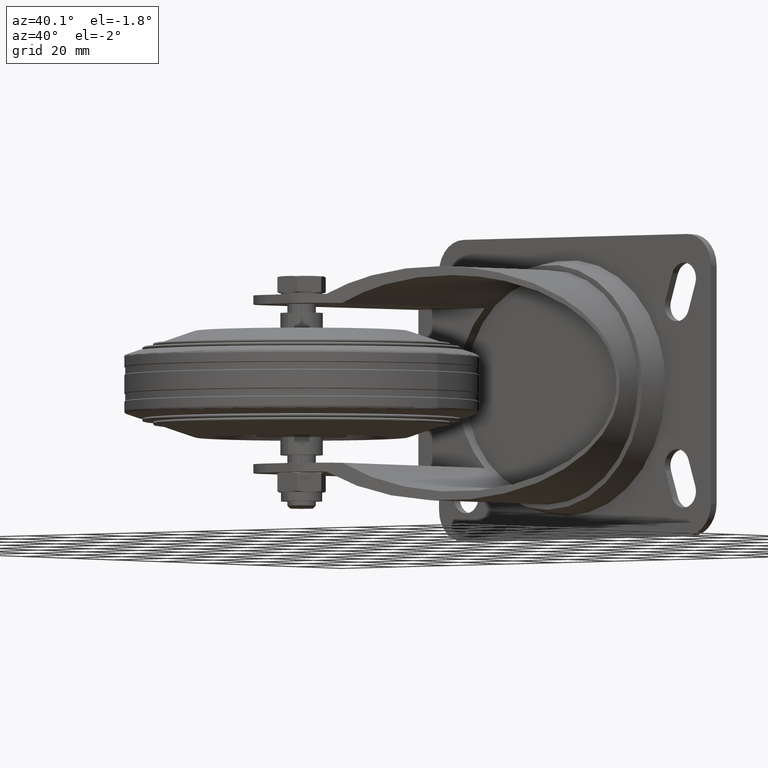
[diagram: clean part render]
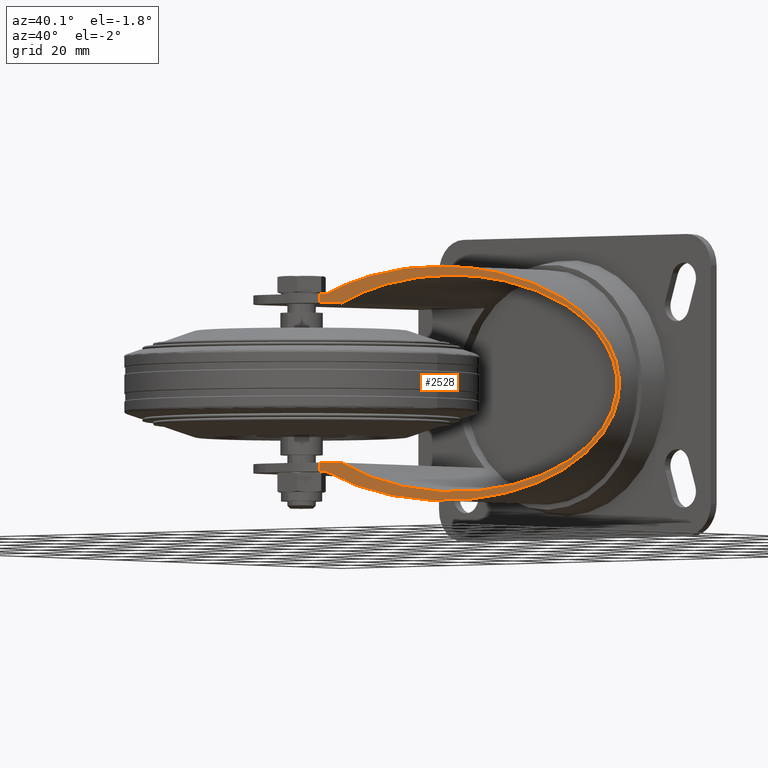
[diagram: same view with one face highlighted and labeled with its STEP entity id]
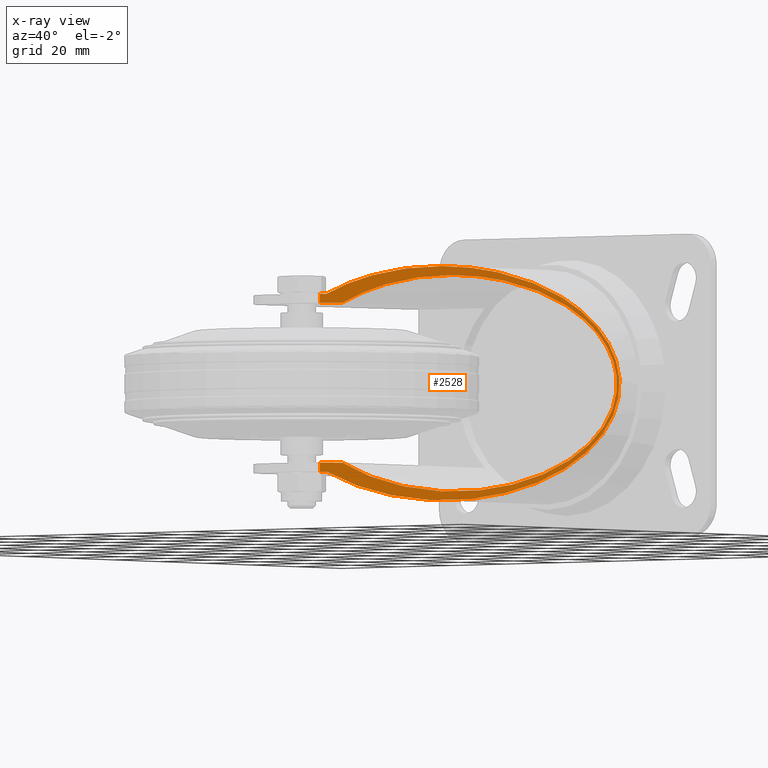
[diagram: x-ray of the same camera — body ghosted, the highlighted face saturated]
A machine part, auxiliary view. The second image highlights one B-rep face of the part: STEP entity #2528.
The next image is the same camera in x-ray: the body ghosted, the highlighted face saturated — about 0% of this face is hidden behind the body in this view.
In plain terms, the highlighted planar face has unit normal (0.7577, -0.6526, 0).
Its self-contained STEP definition (entity closure, byte-faithful):
#53=ELLIPSE('',#2855,46.7387825769155,30.5);
#54=ELLIPSE('',#2856,46.7387825769155,30.5);
#55=ELLIPSE('',#2857,50.5698303291217,33.);
#56=ELLIPSE('',#2858,50.5698303291217,33.);
#176=PLANE('',#2854);
#237=LINE('',#4278,#364);
#240=LINE('',#4290,#367);
#255=LINE('',#4329,#382);
#256=LINE('',#4334,#383);
#257=LINE('',#4336,#384);
#258=LINE('',#4341,#385);
#364=VECTOR('',#3315,1000.);
#367=VECTOR('',#3326,1000.);
#382=VECTOR('',#3363,1000.);
#383=VECTOR('',#3368,1000.);
#384=VECTOR('',#3369,1000.);
#385=VECTOR('',#3374,1000.);
#569=FACE_OUTER_BOUND('',#744,.T.);
#744=EDGE_LOOP('',(#1945,#1946,#1947,#1948,#1949,#1950,#1951,#1952,#1953,
#1954));
#1175=VERTEX_POINT('',#4274);
#1177=VERTEX_POINT('',#4277);
#1180=VERTEX_POINT('',#4284);
#1182=VERTEX_POINT('',#4288);
#1195=VERTEX_POINT('',#4328);
#1196=VERTEX_POINT('',#4330);
#1197=VERTEX_POINT('',#4332);
#1198=VERTEX_POINT('',#4335);
#1199=VERTEX_POINT('',#4337);
#1200=VERTEX_POINT('',#4339);
#1445=EDGE_CURVE('',#1177,#1175,#237,.T.);
#1451=EDGE_CURVE('',#1180,#1182,#240,.T.);
#1470=EDGE_CURVE('',#1175,#1195,#255,.T.);
#1471=EDGE_CURVE('',#1195,#1196,#53,.F.);
#1472=EDGE_CURVE('',#1196,#1197,#54,.F.);
#1473=EDGE_CURVE('',#1197,#1180,#256,.T.);
#1474=EDGE_CURVE('',#1182,#1198,#257,.T.);
#1475=EDGE_CURVE('',#1198,#1199,#55,.T.);
#1476=EDGE_CURVE('',#1199,#1200,#56,.T.);
#1477=EDGE_CURVE('',#1177,#1200,#258,.T.);
#1945=ORIENTED_EDGE('',*,*,#1445,.T.);
#1946=ORIENTED_EDGE('',*,*,#1470,.T.);
#1947=ORIENTED_EDGE('',*,*,#1471,.T.);
#1948=ORIENTED_EDGE('',*,*,#1472,.T.);
#1949=ORIENTED_EDGE('',*,*,#1473,.T.);
#1950=ORIENTED_EDGE('',*,*,#1451,.T.);
#1951=ORIENTED_EDGE('',*,*,#1474,.T.);
#1952=ORIENTED_EDGE('',*,*,#1475,.T.);
#1953=ORIENTED_EDGE('',*,*,#1476,.T.);
#1954=ORIENTED_EDGE('',*,*,#1477,.F.);
#2528=ADVANCED_FACE('',(#569),#176,.T.);
#2854=AXIS2_PLACEMENT_3D('',#4327,#3361,#3362);
#2855=AXIS2_PLACEMENT_3D('',#4331,#3364,#3365);
#2856=AXIS2_PLACEMENT_3D('',#4333,#3366,#3367);
#2857=AXIS2_PLACEMENT_3D('',#4338,#3370,#3371);
#2858=AXIS2_PLACEMENT_3D('',#4340,#3372,#3373);
#3315=DIRECTION('',(0.,0.,-1.));
#3326=DIRECTION('',(0.,0.,-1.));
#3361=DIRECTION('center_axis',(0.757734475862358,-0.652562996261355,0.));
#3362=DIRECTION('ref_axis',(0.652562996261355,0.757734475862358,0.));
#3363=DIRECTION('',(0.652562996261355,0.757734475862358,0.));
#3364=DIRECTION('center_axis',(0.757734475862358,-0.652562996261355,0.));
#3365=DIRECTION('ref_axis',(-0.652562996261355,-0.757734475862358,0.));
#3366=DIRECTION('center_axis',(0.757734475862358,-0.652562996261355,0.));
#3367=DIRECTION('ref_axis',(-0.652562996261355,-0.757734475862358,0.));
#3368=DIRECTION('',(-0.652562996261355,-0.757734475862358,0.));
#3369=DIRECTION('',(0.652562996261355,0.757734475862358,0.));
#3370=DIRECTION('center_axis',(0.757734475862358,-0.652562996261355,0.));
#3371=DIRECTION('ref_axis',(-0.652562996261355,-0.757734475862358,0.));
#3372=DIRECTION('center_axis',(0.757734475862358,-0.652562996261355,0.));
#3373=DIRECTION('ref_axis',(-0.652562996261355,-0.757734475862358,0.));
#3374=DIRECTION('',(0.652562996261355,0.757734475862358,0.));
#4274=CARTESIAN_POINT('',(12.2773447586236,-6.52562996261356,22.5));
#4277=CARTESIAN_POINT('',(12.2773447586236,-6.52562996261356,25.));
#4278=CARTESIAN_POINT('',(12.2773447586236,-6.52562996261356,100.));
#4284=CARTESIAN_POINT('',(12.2773447586236,-6.52562996261356,-22.5));
#4288=CARTESIAN_POINT('',(12.2773447586236,-6.52562996261356,-25.));
#4290=CARTESIAN_POINT('',(12.2773447586236,-6.52562996261356,100.));
#4327=CARTESIAN_POINT('Origin',(70.,60.5,100.));
#4328=CARTESIAN_POINT('',(16.408739718026,-1.72839136330847,22.5));
#4329=CARTESIAN_POINT('',(70.,60.5,22.5));
#4330=CARTESIAN_POINT('',(37.,22.1814961211146,30.5));
#4331=CARTESIAN_POINT('Origin',(37.,22.1814961211146,0.));
#4332=CARTESIAN_POINT('',(16.408739718026,-1.72839136330847,-22.5));
#4333=CARTESIAN_POINT('Origin',(37.,22.1814961211146,0.));
#4334=CARTESIAN_POINT('',(70.,60.5,-22.5));
#4335=CARTESIAN_POINT('',(13.459340771462,-5.15313545343856,-25.));
#4336=CARTESIAN_POINT('',(10.2759039774025,-8.84963651832812,-25.));
#4337=CARTESIAN_POINT('',(35.,19.8591625526973,33.));
#4338=CARTESIAN_POINT('Origin',(35.,19.8591625526973,0.));
#4339=CARTESIAN_POINT('',(13.459340771462,-5.15313545343856,25.));
#4340=CARTESIAN_POINT('Origin',(35.,19.8591625526973,0.));
#4341=CARTESIAN_POINT('',(10.2759039774025,-8.84963651832812,25.));